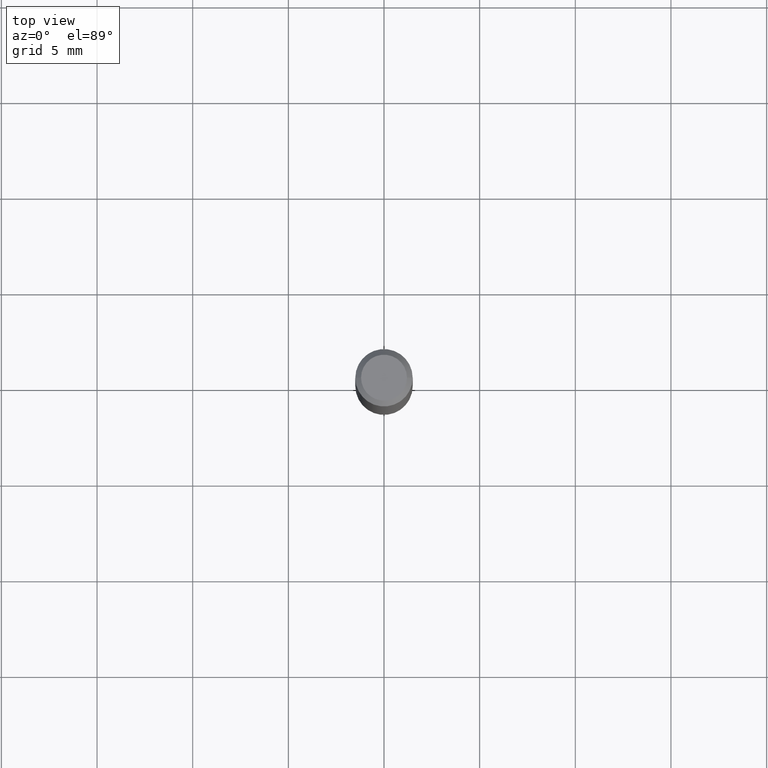
[diagram: clean part render]
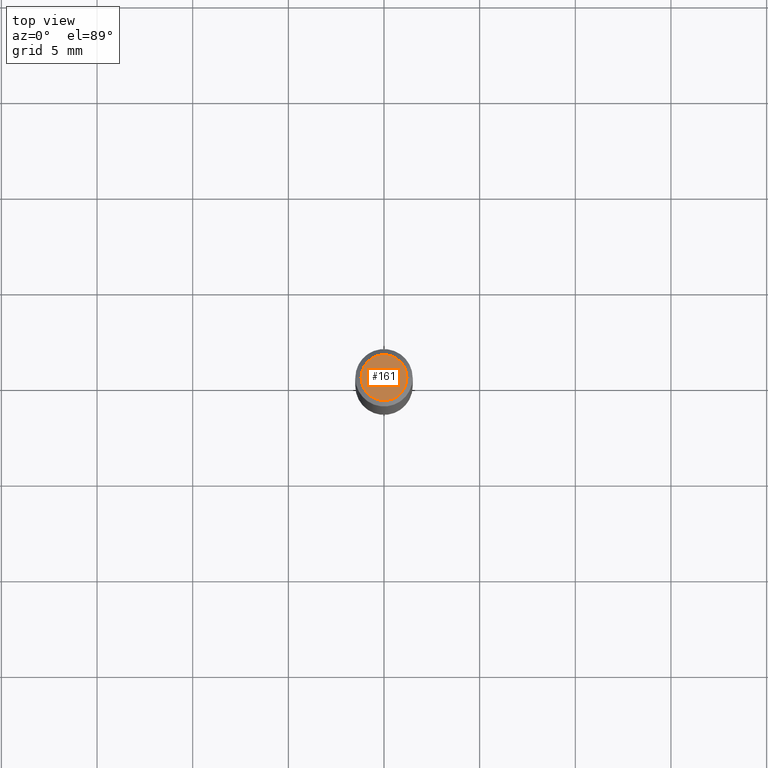
[diagram: same view with one face highlighted and labeled with its STEP entity id]
A machine part, top view. The second image highlights one B-rep face of the part: STEP entity #161.
In plain terms, the highlighted planar face has unit normal (0, -0, -1).
Its self-contained STEP definition (entity closure, byte-faithful):
#30 = AXIS2_PLACEMENT_3D ( 'NONE', #193, #473, #361 ) ;
#64 = VERTEX_POINT ( 'NONE', #488 ) ;
#90 = CARTESIAN_POINT ( 'NONE',  ( 8.265746106709734507E-48, -1.180129479067563789E-33, -3.380025165646692144E-19 ) ) ;
#131 = AXIS2_PLACEMENT_3D ( 'NONE', #261, #374, #443 ) ;
#161 = ADVANCED_FACE ( 'NONE', ( #337 ), #475, .F. ) ;
#193 = CARTESIAN_POINT ( 'NONE',  ( 8.265746106709734507E-48, -1.180129479067563789E-33, -3.380025165646692144E-19 ) ) ;
#196 = ORIENTED_EDGE ( 'NONE', *, *, #370, .T. ) ;
#244 = DIRECTION ( 'NONE',  ( -2.445468806185136597E-29, 3.491481338843145583E-15, 1.000000000000000000 ) ) ;
#261 = CARTESIAN_POINT ( 'NONE',  ( 4.132873053354867254E-48, -5.900647395337818946E-34, -1.690012582823346072E-19 ) ) ;
#275 = EDGE_LOOP ( 'NONE', ( #196, #436 ) ) ;
#328 = EDGE_CURVE ( 'NONE', #64, #368, #342, .T. ) ;
#337 = FACE_OUTER_BOUND ( 'NONE', #275, .T. ) ;
#342 = CIRCLE ( 'NONE', #30, 0.04724000000000000421 ) ;
#361 = DIRECTION ( 'NONE',  ( 1.000000000000000000, -6.982962677686266711E-15, 4.876185090822587894E-29 ) ) ;
#368 = VERTEX_POINT ( 'NONE', #438 ) ;
#370 = EDGE_CURVE ( 'NONE', #368, #64, #424, .T. ) ;
#374 = DIRECTION ( 'NONE',  ( 2.438088387897960049E-29, -3.491481338843145188E-15, -1.000000000000000000 ) ) ;
#399 = DIRECTION ( 'NONE',  ( 1.000000000000000000, -6.982962677686266711E-15, 4.876185090822587894E-29 ) ) ;
#424 = CIRCLE ( 'NONE', #456, 0.04724000000000000421 ) ;
#436 = ORIENTED_EDGE ( 'NONE', *, *, #328, .T. ) ;
#438 = CARTESIAN_POINT ( 'NONE',  ( -0.04724000000000000421, 3.504923541997677355E-16, -3.380025165670481712E-19 ) ) ;
#443 = DIRECTION ( 'NONE',  ( -1.000000000000000000, 6.982962677686265922E-15, -4.876176775795935793E-29 ) ) ;
#456 = AXIS2_PLACEMENT_3D ( 'NONE', #90, #244, #399 ) ;
#473 = DIRECTION ( 'NONE',  ( -2.445468806185136597E-29, 3.491481338843145583E-15, 1.000000000000000000 ) ) ;
#475 = PLANE ( 'NONE',  #131 ) ;
#488 = CARTESIAN_POINT ( 'NONE',  ( 0.04724000000000000421, -3.852183633974369345E-16, -3.380025165621689721E-19 ) ) ;